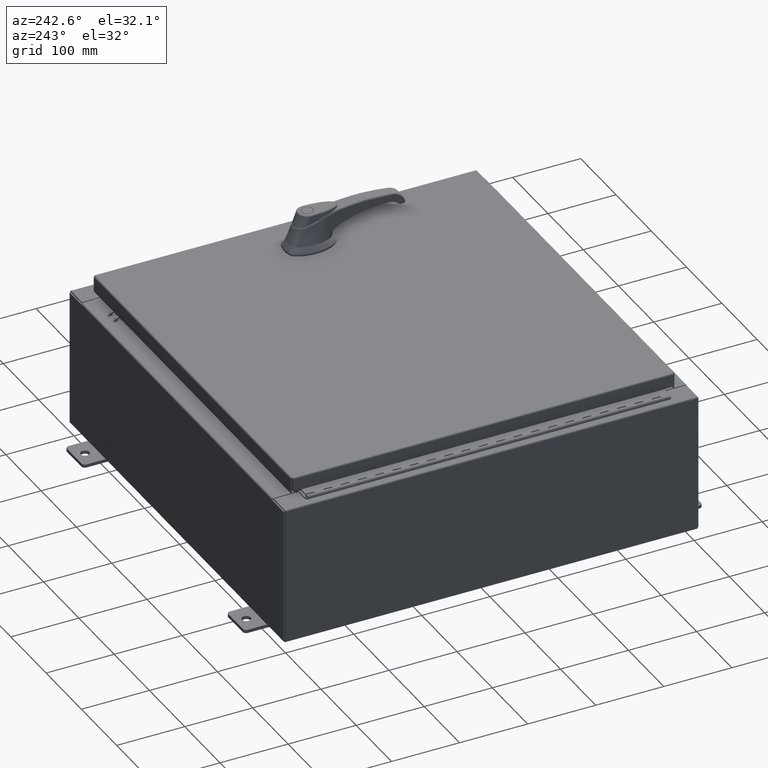
[diagram: clean part render]
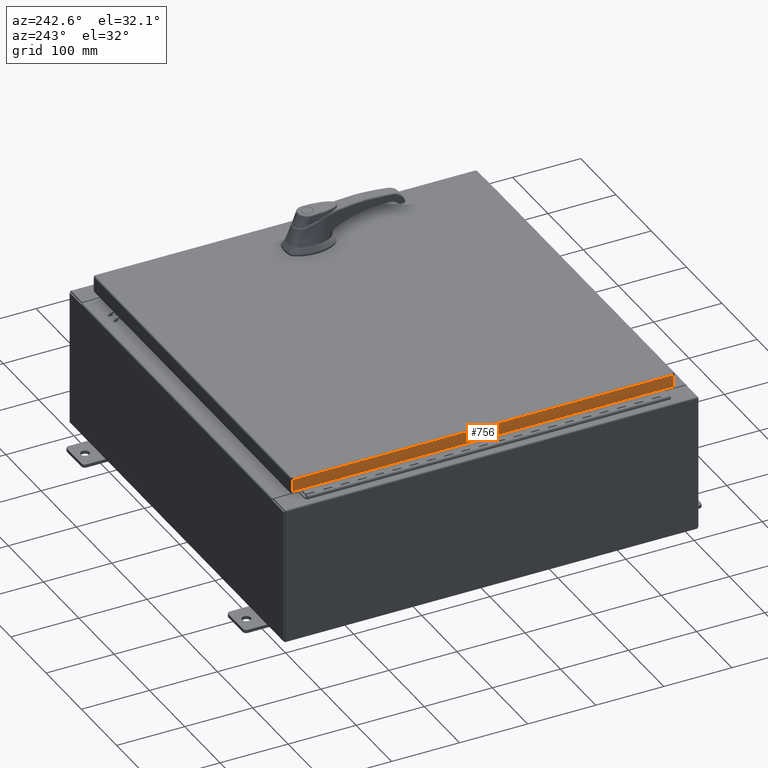
[diagram: same view with one face highlighted and labeled with its STEP entity id]
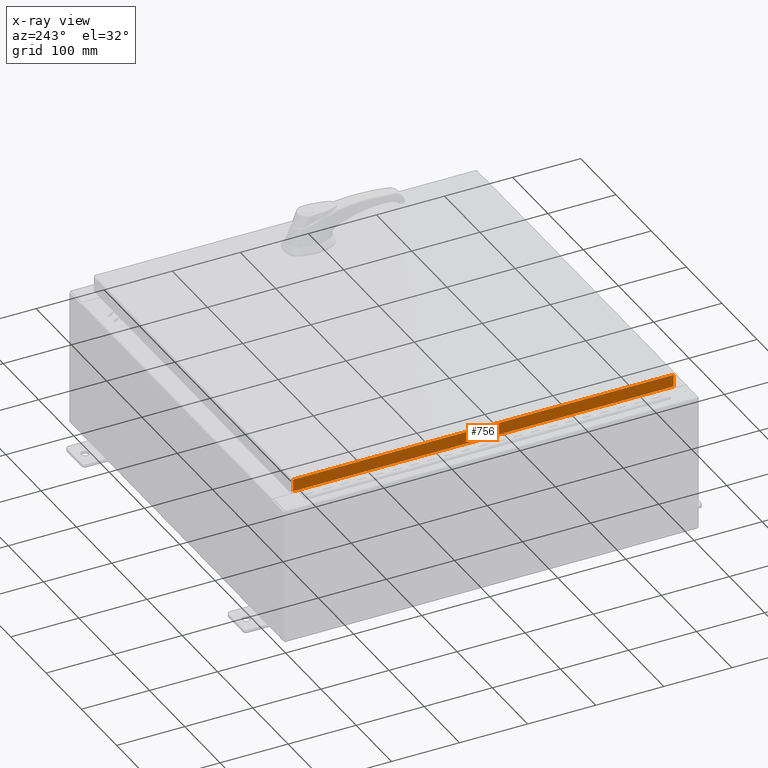
[diagram: x-ray of the same camera — body ghosted, the highlighted face saturated]
A machine part, auxiliary view. The second image highlights one B-rep face of the part: STEP entity #756.
The next image is the same camera in x-ray: the body ghosted, the highlighted face saturated — about 0% of this face is hidden behind the body in this view.
In plain terms, the highlighted planar face has unit normal (1, 0, -0).
Its self-contained STEP definition (entity closure, byte-faithful):
#756 = ADVANCED_FACE ( 'NONE', ( #28018 ), #42416, .F. ) ;
#875 = EDGE_CURVE ( 'NONE', #64867, #33038, #111992, .T. ) ;
#3432 = EDGE_LOOP ( 'NONE', ( #10493, #34349, #86487, #92050 ) ) ;
#7770 = CARTESIAN_POINT ( 'NONE',  ( -11.07800000000000300, -11.09400000000000100, -0.08769999999999982000 ) ) ;
#10493 = ORIENTED_EDGE ( 'NONE', *, *, #20832, .F. ) ;
#12131 = VECTOR ( 'NONE', #16494, 39.37007874015748100 ) ;
#16494 = DIRECTION ( 'NONE',  ( 9.849821502304913400E-017, -1.000000000000000000, -9.849821502304897400E-017 ) ) ;
#20832 = EDGE_CURVE ( 'NONE', #64867, #77610, #107065, .T. ) ;
#21465 = DIRECTION ( 'NONE',  ( -6.068244883885633100E-015, 6.982962677686265900E-015, -1.000000000000000000 ) ) ;
#21655 = CARTESIAN_POINT ( 'NONE',  ( -11.07800000000000700, -11.00515786437626700, -0.7949999999999997100 ) ) ;
#28018 = FACE_OUTER_BOUND ( 'NONE', #3432, .T. ) ;
#33038 = VERTEX_POINT ( 'NONE', #72329 ) ;
#34349 = ORIENTED_EDGE ( 'NONE', *, *, #875, .T. ) ;
#38427 = CARTESIAN_POINT ( 'NONE',  ( -11.07800000000000500, 11.00515786437626400, -0.08769999999999764100 ) ) ;
#39109 = EDGE_CURVE ( 'NONE', #77610, #95987, #87672, .T. ) ;
#41266 = DIRECTION ( 'NONE',  ( 1.000000000000000000, 9.849821502304972600E-017, -6.068244883885633100E-015 ) ) ;
#41648 = DIRECTION ( 'NONE',  ( -6.068244883885633100E-015, 0.0000000000000000000, -1.000000000000000000 ) ) ;
#42416 = PLANE ( 'NONE',  #77798 ) ;
#44374 = VECTOR ( 'NONE', #21465, 39.37007874015748100 ) ;
#64059 = VECTOR ( 'NONE', #75640, 39.37007874015748100 ) ;
#64867 = VERTEX_POINT ( 'NONE', #38427 ) ;
#65090 = CARTESIAN_POINT ( 'NONE',  ( -11.07800000000000300, -11.00515786437627100, -0.07469999999999954500 ) ) ;
#66025 = VECTOR ( 'NONE', #87042, 39.37007874015748100 ) ;
#67379 = CARTESIAN_POINT ( 'NONE',  ( -11.07800000000000300, -1.091163226025345200E-015, 6.748483047969663100E-014 ) ) ;
#72329 = CARTESIAN_POINT ( 'NONE',  ( -11.07800000000000800, 11.00515786437626900, -0.7949999999999969300 ) ) ;
#75640 = DIRECTION ( 'NONE',  ( -9.849821502304897400E-017, 1.000000000000000000, 1.231227687788112100E-016 ) ) ;
#77610 = VERTEX_POINT ( 'NONE', #82705 ) ;
#77798 = AXIS2_PLACEMENT_3D ( 'NONE', #67379, #41266, #41648 ) ;
#82078 = EDGE_CURVE ( 'NONE', #95987, #33038, #107359, .T. ) ;
#82705 = CARTESIAN_POINT ( 'NONE',  ( -11.07800000000000300, -11.00515786437627200, -0.08769999999999500400 ) ) ;
#84337 = CARTESIAN_POINT ( 'NONE',  ( -11.07800000000000700, -11.09400000000000100, -0.7949999999999997100 ) ) ;
#86487 = ORIENTED_EDGE ( 'NONE', *, *, #82078, .F. ) ;
#87042 = DIRECTION ( 'NONE',  ( -6.068244883885633100E-015, 6.982962677686265900E-015, -1.000000000000000000 ) ) ;
#87672 = LINE ( 'NONE', #65090, #44374 ) ;
#92050 = ORIENTED_EDGE ( 'NONE', *, *, #39109, .F. ) ;
#95987 = VERTEX_POINT ( 'NONE', #21655 ) ;
#107065 = LINE ( 'NONE', #7770, #12131 ) ;
#107359 = LINE ( 'NONE', #84337, #64059 ) ;
#111941 = CARTESIAN_POINT ( 'NONE',  ( -11.07800000000000300, 11.00515786437626400, 1.443334371086815900E-013 ) ) ;
#111992 = LINE ( 'NONE', #111941, #66025 ) ;